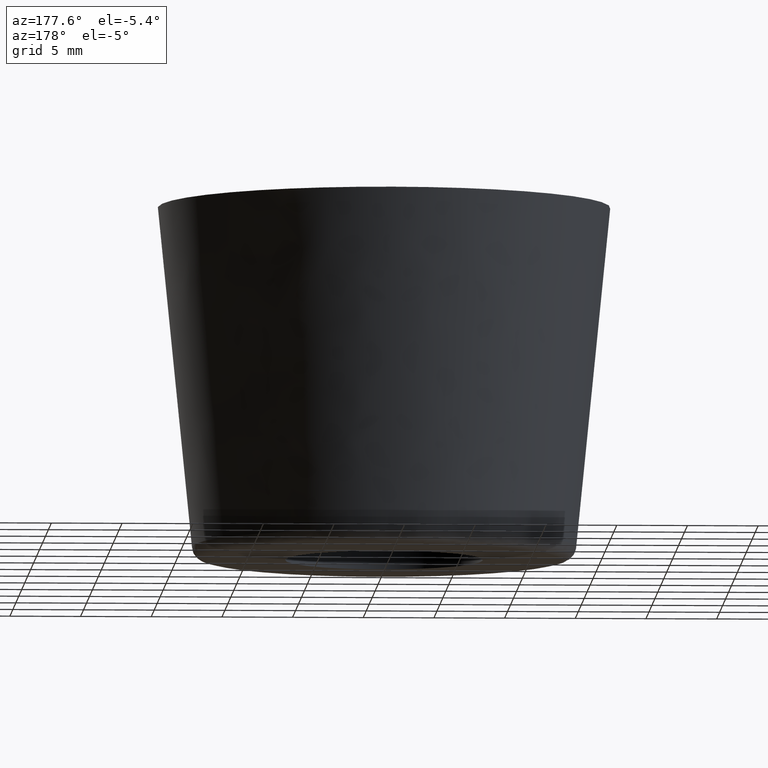
[diagram: clean part render]
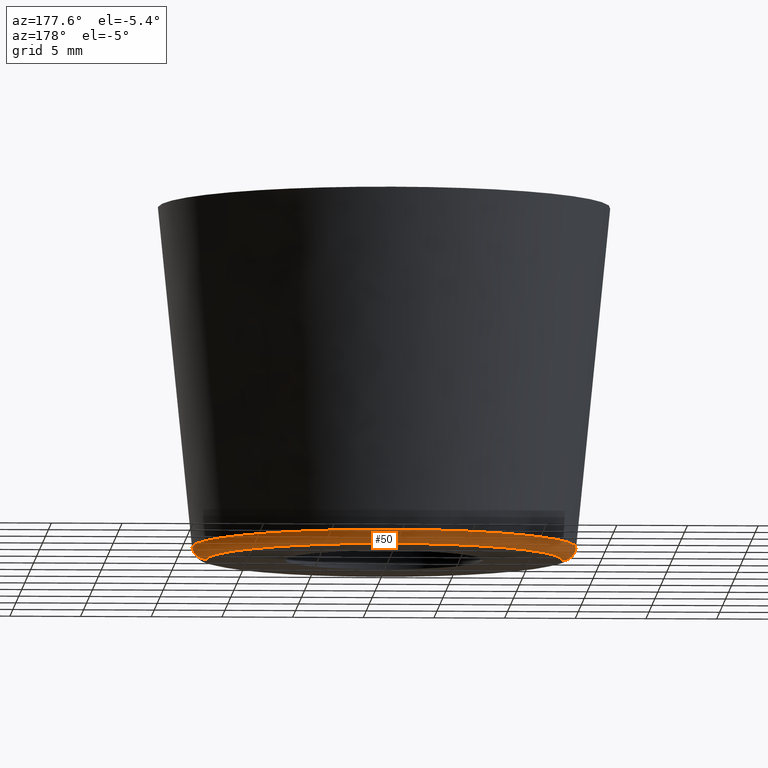
[diagram: same view with one face highlighted and labeled with its STEP entity id]
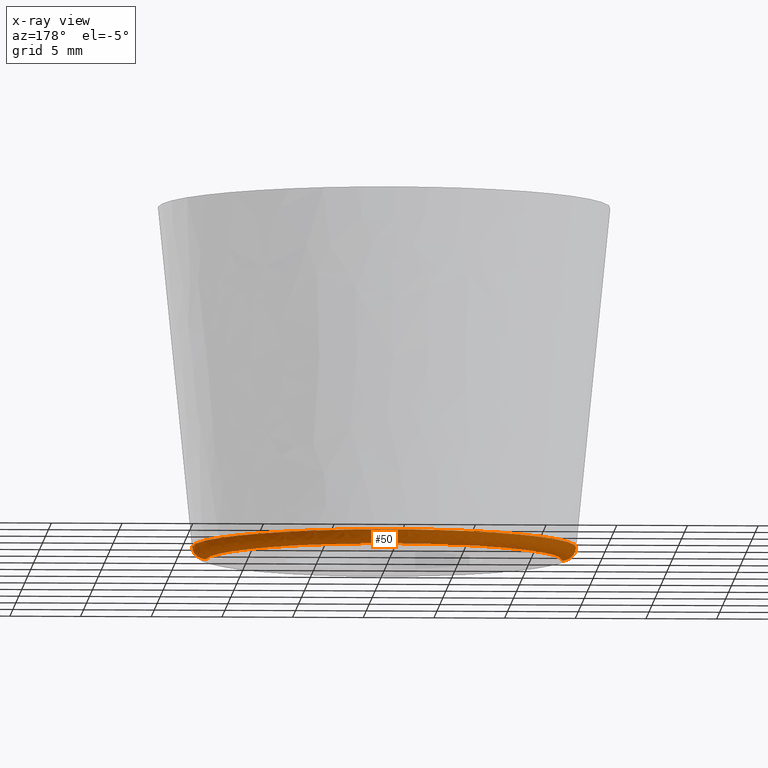
[diagram: x-ray of the same camera — body ghosted, the highlighted face saturated]
A machine part, auxiliary view. The second image highlights one B-rep face of the part: STEP entity #50.
The next image is the same camera in x-ray: the body ghosted, the highlighted face saturated — about 0% of this face is hidden behind the body in this view.
In plain terms, the highlighted face is a freeform B-spline surface patch.
Its self-contained STEP definition (entity closure, byte-faithful):
#50=ADVANCED_FACE('',(#155),#154,.T.);
#154=( BOUNDED_SURFACE() B_SPLINE_SURFACE( 2,2,((#250,#251,#252,#253,#254),(#255,#256,#257,#258,#259),(#260,#261,#262,#263,#264),(#265,#266,#267,#268,#269),(#270,#271,#272,#273,#274)), .UNSPECIFIED.,.F.,.F.,.F.) B_SPLINE_SURFACE_WITH_KNOTS((3,2,3),(3,2,3),(0.00000000000E+00,5.00000000000E-01,1.00000000000E+00),(0.00000000000E+00,5.00000000000E-01,1.00000000000E+00), .UNSPECIFIED. ) GEOMETRIC_REPRESENTATION_ITEM() RATIONAL_B_SPLINE_SURFACE(((1.00000000000E+00,7.41452533552E-01,1.00000000000E+00,7.41452533552E-01,1.00000000000E+00),(7.07106781187E-01,5.24286114402E-01,7.07106781187E-01,5.24286114402E-01,7.07106781187E-01),(1.00000000000E+00,7.41452533552E-01,1.00000000000E+00,7.41452533552E-01,1.00000000000E+00),(7.07106781187E-01,5.24286114402E-01,7.07106781187E-01,5.24286114402E-01,7.07106781187E-01),(1.00000000000E+00,7.41452533552E-01,1.00000000000E+00,7.41452533552E-01,1.00000000000E+00))) REPRESENTATION_ITEM('') SURFACE() );
#155=FACE_OUTER_BOUND('',#275,.T.);
#250=CARTESIAN_POINT('',(-1.35900496281E+01,-5.49653973648E-20,-2.40995037190E+01));
#251=CARTESIAN_POINT('',(-1.35000000000E+01,-5.46011887175E-20,-2.50000000000E+01));
#252=CARTESIAN_POINT('',(-1.25950124379E+01,-5.09409371126E-20,-2.50000000000E+01));
#253=CARTESIAN_POINT('',(-1.16900248758E+01,-4.72806855078E-20,-2.50000000000E+01));
#254=CARTESIAN_POINT('',(-1.15999752477E+01,-4.69164768605E-20,-2.40995037190E+01));
#255=CARTESIAN_POINT('',(-1.35900496281E+01,1.35900496281E+01,-2.40995037190E+01));
#256=CARTESIAN_POINT('',(-1.35000000000E+01,1.35000000000E+01,-2.50000000000E+01));
#257=CARTESIAN_POINT('',(-1.25950124379E+01,1.25950124379E+01,-2.50000000000E+01));
#258=CARTESIAN_POINT('',(-1.16900248758E+01,1.16900248758E+01,-2.50000000000E+01));
#259=CARTESIAN_POINT('',(-1.15999752477E+01,1.15999752477E+01,-2.40995037190E+01));
#260=CARTESIAN_POINT('',(6.10668839964E-15,1.35900496281E+01,-2.40995037190E+01));
#261=CARTESIAN_POINT('',(6.11220271329E-15,1.35000000000E+01,-2.50000000000E+01));
#262=CARTESIAN_POINT('',(6.16762087961E-15,1.25950124379E+01,-2.50000000000E+01));
#263=CARTESIAN_POINT('',(6.22303904592E-15,1.16900248758E+01,-2.50000000000E+01));
#264=CARTESIAN_POINT('',(6.22855335957E-15,1.15999752477E+01,-2.40995037190E+01));
#265=CARTESIAN_POINT('',(1.35900496281E+01,1.35900496281E+01,-2.40995037190E+01));
#266=CARTESIAN_POINT('',(1.35000000000E+01,1.35000000000E+01,-2.50000000000E+01));
#267=CARTESIAN_POINT('',(1.25950124379E+01,1.25950124379E+01,-2.50000000000E+01));
#268=CARTESIAN_POINT('',(1.16900248758E+01,1.16900248758E+01,-2.50000000000E+01));
#269=CARTESIAN_POINT('',(1.15999752477E+01,1.15999752477E+01,-2.40995037190E+01));
#270=CARTESIAN_POINT('',(1.35900496281E+01,1.66435604313E-15,-2.40995037190E+01));
#271=CARTESIAN_POINT('',(1.35000000000E+01,1.65332778004E-15,-2.50000000000E+01));
#272=CARTESIAN_POINT('',(1.25950124379E+01,1.54249510766E-15,-2.50000000000E+01));
#273=CARTESIAN_POINT('',(1.16900248758E+01,1.43166243529E-15,-2.50000000000E+01));
#274=CARTESIAN_POINT('',(1.15999752477E+01,1.42063417220E-15,-2.40995037190E+01));
#275=EDGE_LOOP('',(#316,#317,#318,#319));
#316=ORIENTED_EDGE('',*,*,#335,.T.);
#317=ORIENTED_EDGE('',*,*,#340,.T.);
#318=ORIENTED_EDGE('',*,*,#328,.F.);
#319=ORIENTED_EDGE('',*,*,#341,.F.);
#328=EDGE_CURVE('',#398,#399,#400,.T.);
#335=EDGE_CURVE('',#426,#433,#446,.T.);
#340=EDGE_CURVE('',#433,#399,#476,.T.);
#341=EDGE_CURVE('',#426,#398,#482,.T.);
#398=VERTEX_POINT('',#528);
#399=VERTEX_POINT('',#529);
#400=CIRCLE('',#533,1.25950124379E+01);
#426=VERTEX_POINT('',#548);
#433=VERTEX_POINT('',#551);
#446=CIRCLE('',#561,1.35900496281E+01);
#476=(BOUNDED_CURVE() B_SPLINE_CURVE(2,(#570,#571,#572),.UNSPECIFIED.,.F.,.F.) B_SPLINE_CURVE_WITH_KNOTS((3,3),(0.00000000000E+00,5.00000000000E-01),.UNSPECIFIED.) CURVE() GEOMETRIC_REPRESENTATION_ITEM() RATIONAL_B_SPLINE_CURVE((1.00000000000E+00,7.41452533552E-01,1.00000000000E+00)) REPRESENTATION_ITEM('') );
#482=(BOUNDED_CURVE() B_SPLINE_CURVE(3,(#573,#574,#575,#576),.UNSPECIFIED.,.F.,.F.) B_SPLINE_CURVE_WITH_KNOTS((4,4),(0.00000000000E+00,5.00000000837E-01),.UNSPECIFIED.) CURVE() GEOMETRIC_REPRESENTATION_ITEM() RATIONAL_B_SPLINE_CURVE((1.00000000000E+00,1.00000000000E+00,1.00000000000E+00,1.00000000000E+00)) REPRESENTATION_ITEM('') );
#528=CARTESIAN_POINT('',(-1.25950124379E+01,0.00000000000E+00,-2.50000000000E+01));
#529=CARTESIAN_POINT('',(1.25950124379E+01,-5.92118946467E-16,-2.50000000000E+01));
#530=CARTESIAN_POINT('',(7.10542735760E-15,0.00000000000E+00,-2.50000000000E+01));
#531=DIRECTION('',(-0.00000000000E+00,0.00000000000E+00,-1.00000000000E+00));
#532=DIRECTION('',(-1.00000000000E+00,-1.22460635382E-16,0.00000000000E+00));
#533=AXIS2_PLACEMENT_3D('',#530,#531,#532);
#548=CARTESIAN_POINT('',(-1.35900496281E+01,0.00000000000E+00,-2.40995037190E+01));
#551=CARTESIAN_POINT('',(1.35900496281E+01,5.92118946467E-16,-2.40995037190E+01));
#558=CARTESIAN_POINT('',(7.10542735760E-15,0.00000000000E+00,-2.40995037190E+01));
#559=DIRECTION('',(-0.00000000000E+00,0.00000000000E+00,-1.00000000000E+00));
#560=DIRECTION('',(-1.00000000000E+00,-1.22460635382E-16,0.00000000000E+00));
#561=AXIS2_PLACEMENT_3D('',#558,#559,#560);
#570=CARTESIAN_POINT('',(1.35900496281E+01,-1.66424611233E-15,-2.40995037190E+01));
#571=CARTESIAN_POINT('',(1.35000000000E+01,-1.65321857766E-15,-2.50000000000E+01));
#572=CARTESIAN_POINT('',(1.25950124379E+01,-1.54239322579E-15,-2.50000000000E+01));
#573=CARTESIAN_POINT('',(-1.35900496281E+01,1.18423789293E-15,-2.40995037190E+01));
#574=CARTESIAN_POINT('',(-1.34896861985E+01,1.44796748208E-15,-2.46552700458E+01));
#575=CARTESIAN_POINT('',(-1.31580071344E+01,1.64534046442E-15,-2.49554354728E+01));
#576=CARTESIAN_POINT('',(-1.25950124356E+01,1.77635683995E-15,-2.50000000000E+01));